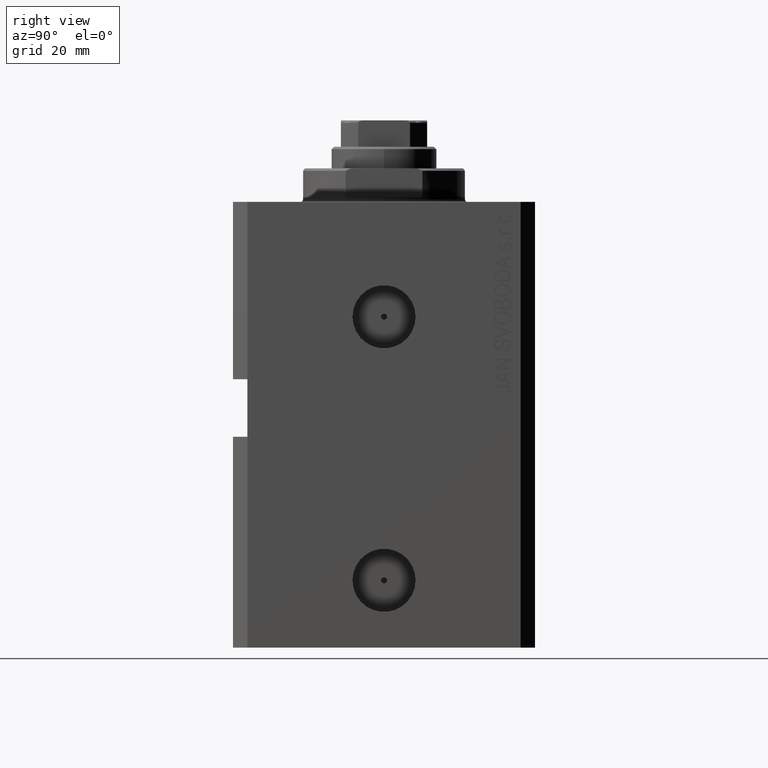
[diagram: clean part render]
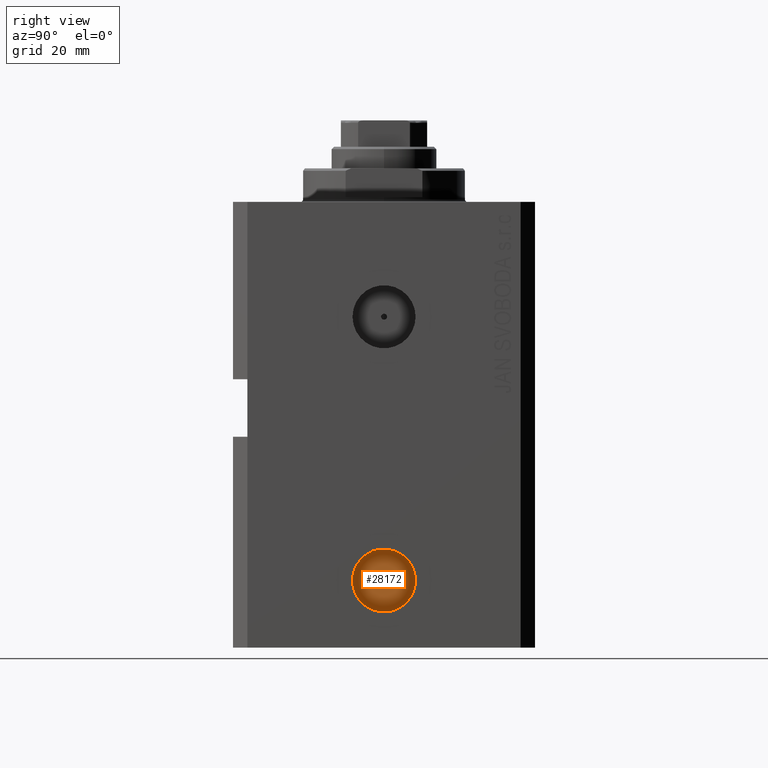
[diagram: same view with one face highlighted and labeled with its STEP entity id]
A machine part, right view. The second image highlights one B-rep face of the part: STEP entity #28172.
In plain terms, the highlighted planar face has unit normal (1, -0, 0).
Its self-contained STEP definition (entity closure, byte-faithful):
#732 = EDGE_LOOP ( 'NONE', ( #35059, #25678 ) ) ;
#1141 = CIRCLE ( 'NONE', #19254, 6.579999999999987637 ) ;
#1416 = EDGE_CURVE ( 'NONE', #13689, #10439, #30651, .T. ) ;
#2324 = CARTESIAN_POINT ( 'NONE',  ( 29.40000000000025793, -0.6250000000002082778, -79.00000000000000000 ) ) ;
#3361 = AXIS2_PLACEMENT_3D ( 'NONE', #13683, #34797, #31613 ) ;
#4914 = EDGE_CURVE ( 'NONE', #10439, #13689, #13934, .T. ) ;
#5471 = DIRECTION ( 'NONE',  ( 1.000000000000000000, -1.334402673828349134E-14, 0.000000000000000000 ) ) ;
#6991 = CIRCLE ( 'NONE', #3361, 6.579999999999987637 ) ;
#8571 = EDGE_LOOP ( 'NONE', ( #41669, #15987 ) ) ;
#10439 = VERTEX_POINT ( 'NONE', #27146 ) ;
#10889 = FACE_BOUND ( 'NONE', #8571, .T. ) ;
#11105 = CARTESIAN_POINT ( 'NONE',  ( 29.40000000000026503, -2.028760275683516938E-13, -79.00000000000000000 ) ) ;
#11618 = AXIS2_PLACEMENT_3D ( 'NONE', #11105, #38338, #24727 ) ;
#13683 = CARTESIAN_POINT ( 'NONE',  ( 29.40000000000026503, -2.028760275683516938E-13, -79.00000000000000000 ) ) ;
#13689 = VERTEX_POINT ( 'NONE', #2324 ) ;
#13934 = CIRCLE ( 'NONE', #29903, 0.6250000000000054401 ) ;
#15673 = CARTESIAN_POINT ( 'NONE',  ( 29.40000000000026503, -2.028760275683516938E-13, -79.00000000000000000 ) ) ;
#15987 = ORIENTED_EDGE ( 'NONE', *, *, #1416, .F. ) ;
#18896 = DIRECTION ( 'NONE',  ( 1.000000000000000000, -1.334402673828349134E-14, 0.000000000000000000 ) ) ;
#19254 = AXIS2_PLACEMENT_3D ( 'NONE', #35787, #32392, #39636 ) ;
#22506 = DIRECTION ( 'NONE',  ( 1.110223024625146916E-14, 1.000000000000000000, 0.000000000000000000 ) ) ;
#22765 = CARTESIAN_POINT ( 'NONE',  ( 29.40000000000035385, 6.579999999999785132, -79.00000000000000000 ) ) ;
#24727 = DIRECTION ( 'NONE',  ( 1.334402673828349134E-14, 1.000000000000000000, 0.000000000000000000 ) ) ;
#25678 = ORIENTED_EDGE ( 'NONE', *, *, #31708, .T. ) ;
#27146 = CARTESIAN_POINT ( 'NONE',  ( 29.40000000000027214, 0.6249999999998026023, -79.00000000000000000 ) ) ;
#28172 = ADVANCED_FACE ( 'NONE', ( #10889, #37884 ), #28351, .T. ) ;
#28351 = PLANE ( 'NONE',  #11618 ) ;
#29903 = AXIS2_PLACEMENT_3D ( 'NONE', #15673, #5471, #22506 ) ;
#30651 = CIRCLE ( 'NONE', #35708, 0.6250000000000054401 ) ;
#31613 = DIRECTION ( 'NONE',  ( 1.318178933113077855E-14, 1.000000000000000000, 0.000000000000000000 ) ) ;
#31708 = EDGE_CURVE ( 'NONE', #44740, #43238, #1141, .T. ) ;
#32392 = DIRECTION ( 'NONE',  ( 1.000000000000000000, -1.334402673828349134E-14, 0.000000000000000000 ) ) ;
#32751 = DIRECTION ( 'NONE',  ( 1.110223024625146916E-14, 1.000000000000000000, 0.000000000000000000 ) ) ;
#34797 = DIRECTION ( 'NONE',  ( 1.000000000000000000, -1.334402673828349134E-14, 0.000000000000000000 ) ) ;
#35059 = ORIENTED_EDGE ( 'NONE', *, *, #37394, .T. ) ;
#35708 = AXIS2_PLACEMENT_3D ( 'NONE', #36155, #18896, #32751 ) ;
#35787 = CARTESIAN_POINT ( 'NONE',  ( 29.40000000000026503, -2.028760275683516938E-13, -79.00000000000000000 ) ) ;
#36155 = CARTESIAN_POINT ( 'NONE',  ( 29.40000000000026503, -2.028760275683516938E-13, -79.00000000000000000 ) ) ;
#37394 = EDGE_CURVE ( 'NONE', #43238, #44740, #6991, .T. ) ;
#37884 = FACE_OUTER_BOUND ( 'NONE', #732, .T. ) ;
#38322 = CARTESIAN_POINT ( 'NONE',  ( 29.40000000000017977, -6.580000000000191029, -79.00000000000000000 ) ) ;
#38338 = DIRECTION ( 'NONE',  ( 1.000000000000000000, -1.334402673828349134E-14, 0.000000000000000000 ) ) ;
#39636 = DIRECTION ( 'NONE',  ( 1.318178933113077855E-14, 1.000000000000000000, 0.000000000000000000 ) ) ;
#41669 = ORIENTED_EDGE ( 'NONE', *, *, #4914, .F. ) ;
#43238 = VERTEX_POINT ( 'NONE', #22765 ) ;
#44740 = VERTEX_POINT ( 'NONE', #38322 ) ;